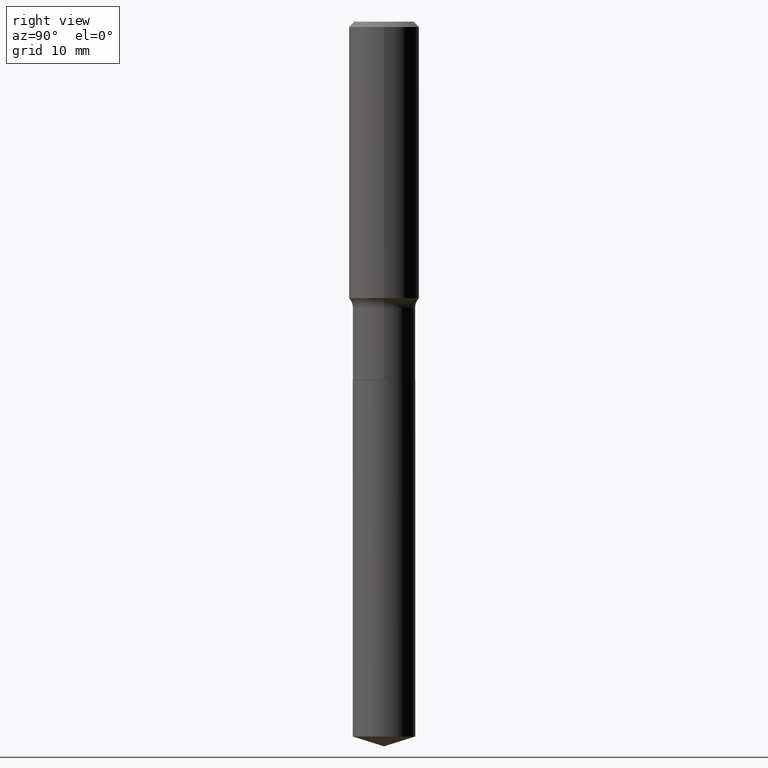
[diagram: clean part render]
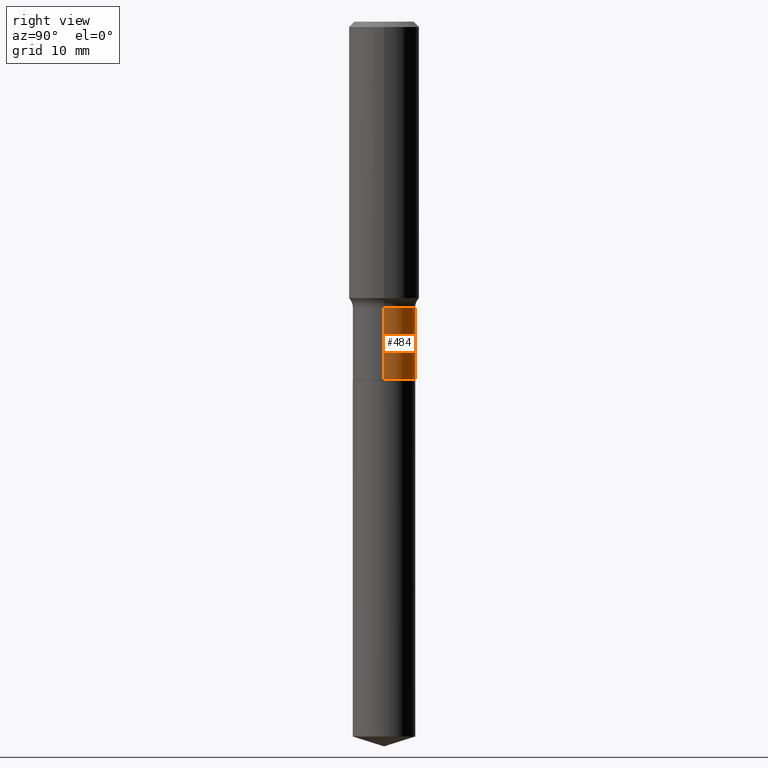
[diagram: same view with one face highlighted and labeled with its STEP entity id]
A machine part, right view. The second image highlights one B-rep face of the part: STEP entity #484.
In plain terms, the highlighted cylindrical surface (edge-blend (fillet) strip) has radius 4.4501 mm, axis along (-0, 0, 1).
Its self-contained STEP definition (entity closure, byte-faithful):
#22 = LINE ( 'NONE', #163, #172 ) ;
#30 = VECTOR ( 'NONE', #456, 39.37007874015748143 ) ;
#31 = EDGE_CURVE ( 'NONE', #434, #438, #274, .T. ) ;
#41 = CARTESIAN_POINT ( 'NONE',  ( 4.899252206311302338E-29, -6.994833714238357390E-15, -2.003400000000000070 ) ) ;
#51 = FACE_OUTER_BOUND ( 'NONE', #298, .T. ) ;
#90 = CARTESIAN_POINT ( 'NONE',  ( 0.1751999999999999391, -1.223415061130633483E-15, 8.543061711194476516E-30 ) ) ;
#99 = CARTESIAN_POINT ( 'NONE',  ( 3.914951011821784364E-29, -5.589512475353991008E-15, -1.600899999999999768 ) ) ;
#106 = EDGE_CURVE ( 'NONE', #403, #240, #22, .T. ) ;
#110 = DIRECTION ( 'NONE',  ( 1.000000000000000000, -6.982962677686265133E-15, 0.000000000000000000 ) ) ;
#113 = DIRECTION ( 'NONE',  ( 1.000000000000000000, -6.982962677686263555E-15, 0.000000000000000000 ) ) ;
#116 = DIRECTION ( 'NONE',  ( -2.445468806185136597E-29, 3.491481338843145583E-15, 1.000000000000000000 ) ) ;
#117 = CIRCLE ( 'NONE', #375, 0.1751999999999999946 ) ;
#163 = CARTESIAN_POINT ( 'NONE',  ( -0.1751999999999999391, 1.244870873051695093E-15, -8.617974278126592972E-30 ) ) ;
#172 = VECTOR ( 'NONE', #472, 39.37007874015748143 ) ;
#177 = ORIENTED_EDGE ( 'NONE', *, *, #31, .F. ) ;
#192 = CARTESIAN_POINT ( 'NONE',  ( 0.1751999999999999946, -8.218248775368990478E-15, -2.003400000000000070 ) ) ;
#202 = CYLINDRICAL_SURFACE ( 'NONE', #336, 0.1751999999999999391 ) ;
#208 = CARTESIAN_POINT ( 'NONE',  ( -0.1751999999999999946, -5.047302221744479303E-15, -2.003400000000000070 ) ) ;
#223 = EDGE_CURVE ( 'NONE', #438, #240, #226, .T. ) ;
#226 = CIRCLE ( 'NONE', #390, 0.1751999999999999391 ) ;
#240 = VERTEX_POINT ( 'NONE', #299 ) ;
#252 = ORIENTED_EDGE ( 'NONE', *, *, #264, .T. ) ;
#264 = EDGE_CURVE ( 'NONE', #434, #403, #117, .T. ) ;
#274 = LINE ( 'NONE', #90, #30 ) ;
#284 = DIRECTION ( 'NONE',  ( -2.445468806185136597E-29, 3.491481338843145583E-15, 1.000000000000000000 ) ) ;
#298 = EDGE_LOOP ( 'NONE', ( #252, #415, #410, #177 ) ) ;
#299 = CARTESIAN_POINT ( 'NONE',  ( -0.1751999999999999391, -5.047302221744479303E-15, -1.600899999999999768 ) ) ;
#336 = AXIS2_PLACEMENT_3D ( 'NONE', #357, #284, #402 ) ;
#357 = CARTESIAN_POINT ( 'NONE',  ( 0.000000000000000000, 0.000000000000000000, 0.000000000000000000 ) ) ;
#375 = AXIS2_PLACEMENT_3D ( 'NONE', #41, #116, #113 ) ;
#390 = AXIS2_PLACEMENT_3D ( 'NONE', #99, #486, #110 ) ;
#402 = DIRECTION ( 'NONE',  ( 1.000000000000000000, -6.982962677686266711E-15, 4.876176775795935793E-29 ) ) ;
#403 = VERTEX_POINT ( 'NONE', #208 ) ;
#410 = ORIENTED_EDGE ( 'NONE', *, *, #223, .F. ) ;
#415 = ORIENTED_EDGE ( 'NONE', *, *, #106, .T. ) ;
#434 = VERTEX_POINT ( 'NONE', #192 ) ;
#438 = VERTEX_POINT ( 'NONE', #457 ) ;
#456 = DIRECTION ( 'NONE',  ( -2.445468806185136877E-29, 3.491481338843145188E-15, 1.000000000000000000 ) ) ;
#457 = CARTESIAN_POINT ( 'NONE',  ( 0.1751999999999999391, -6.812927536484624885E-15, -1.600899999999999768 ) ) ;
#472 = DIRECTION ( 'NONE',  ( -2.445468806185136877E-29, 3.491481338843145188E-15, 1.000000000000000000 ) ) ;
#484 = ADVANCED_FACE ( 'NONE', ( #51 ), #202, .T. ) ;
#486 = DIRECTION ( 'NONE',  ( -2.445468806185136597E-29, 3.491481338843145583E-15, 1.000000000000000000 ) ) ;